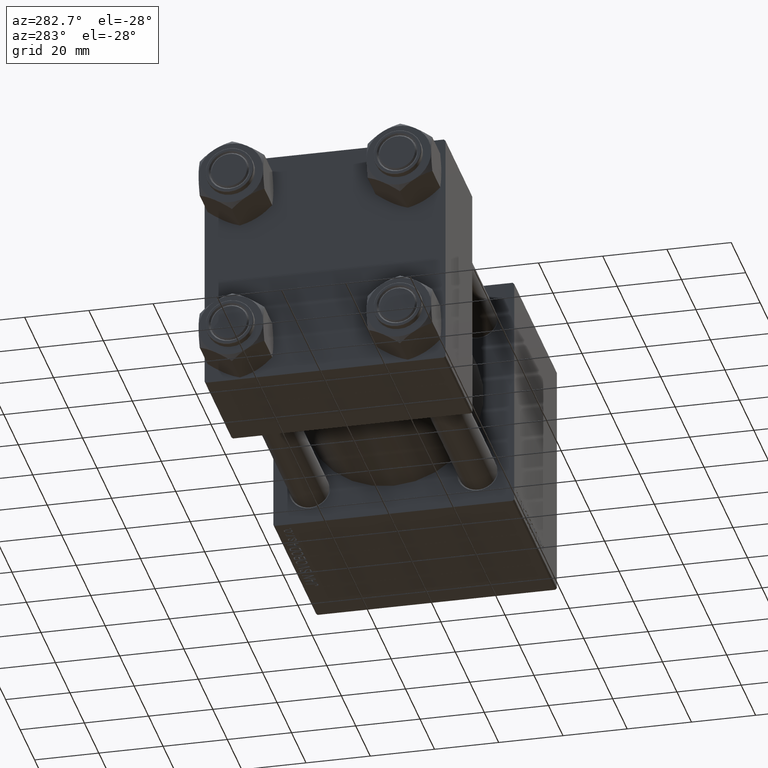
[diagram: clean part render]
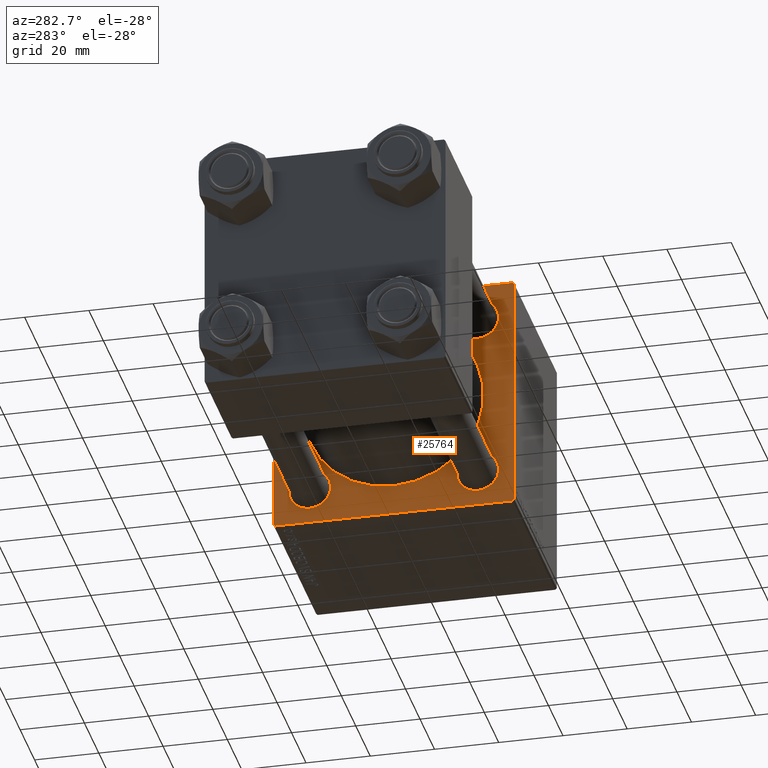
[diagram: same view with one face highlighted and labeled with its STEP entity id]
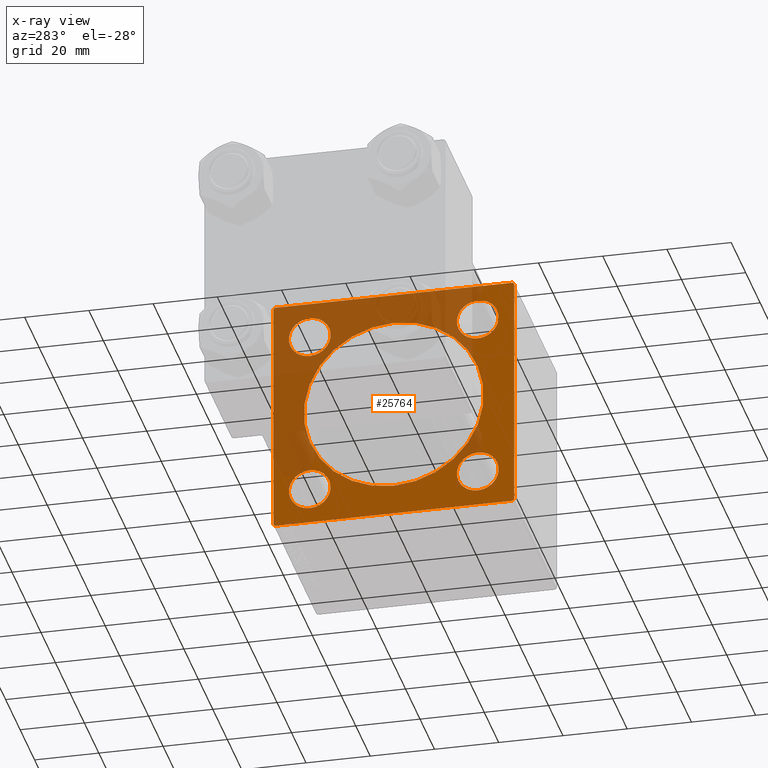
[diagram: x-ray of the same camera — body ghosted, the highlighted face saturated]
A machine part, auxiliary view. The second image highlights one B-rep face of the part: STEP entity #25764.
The next image is the same camera in x-ray: the body ghosted, the highlighted face saturated — about 46% of this face is hidden behind the body in this view.
In plain terms, the highlighted planar face has unit normal (-1, 0, 0).
Its self-contained STEP definition (entity closure, byte-faithful):
#95 = VECTOR ( 'NONE', #33898, 1000.000000000000000 ) ;
#111 = EDGE_LOOP ( 'NONE', ( #14825, #46505 ) ) ;
#242 = AXIS2_PLACEMENT_3D ( 'NONE', #14487, #14239, #25222 ) ;
#814 = CARTESIAN_POINT ( 'NONE',  ( 95.00000000000000000, 37.25000000000000000, 37.25000000000000000 ) ) ;
#865 = VERTEX_POINT ( 'NONE', #15952 ) ;
#1116 = CARTESIAN_POINT ( 'NONE',  ( 95.00000000000000000, 26.14999999999999858, -26.15000000000000213 ) ) ;
#1123 = VECTOR ( 'NONE', #2482, 1000.000000000000114 ) ;
#1261 = VERTEX_POINT ( 'NONE', #8940 ) ;
#2482 = DIRECTION ( 'NONE',  ( -0.000000000000000000, 0.7071067811865474617, 0.7071067811865474617 ) ) ;
#2814 = ORIENTED_EDGE ( 'NONE', *, *, #16903, .T. ) ;
#3296 = EDGE_LOOP ( 'NONE', ( #38066, #2814 ) ) ;
#3730 = DIRECTION ( 'NONE',  ( 1.000000000000000000, 0.000000000000000000, 0.000000000000000000 ) ) ;
#4296 = ORIENTED_EDGE ( 'NONE', *, *, #8835, .F. ) ;
#4686 = VECTOR ( 'NONE', #7028, 999.9999999999998863 ) ;
#5046 = DIRECTION ( 'NONE',  ( 1.000000000000000000, 0.000000000000000000, -0.000000000000000000 ) ) ;
#5388 = DIRECTION ( 'NONE',  ( 1.000000000000000000, 0.000000000000000000, -0.000000000000000000 ) ) ;
#5838 = VERTEX_POINT ( 'NONE', #34257 ) ;
#6691 = CARTESIAN_POINT ( 'NONE',  ( 95.00000000000000000, -26.14999999999999147, -26.15000000000000924 ) ) ;
#7028 = DIRECTION ( 'NONE',  ( -0.000000000000000000, -0.7071067811865425767, -0.7071067811865525687 ) ) ;
#7176 = VERTEX_POINT ( 'NONE', #27290 ) ;
#7447 = DIRECTION ( 'NONE',  ( 0.000000000000000000, 0.000000000000000000, 1.000000000000000000 ) ) ;
#7565 = LINE ( 'NONE', #27942, #29474 ) ;
#8068 = DIRECTION ( 'NONE',  ( 0.000000000000000000, -1.000000000000000000, 0.000000000000000000 ) ) ;
#8270 = DIRECTION ( 'NONE',  ( 1.000000000000000000, 0.000000000000000000, -0.000000000000000000 ) ) ;
#8463 = EDGE_CURVE ( 'NONE', #7176, #25950, #37556, .T. ) ;
#8492 = VERTEX_POINT ( 'NONE', #20093 ) ;
#8835 = EDGE_CURVE ( 'NONE', #43632, #30145, #46126, .T. ) ;
#8940 = CARTESIAN_POINT ( 'NONE',  ( 95.00000000000000000, -36.99999999999998579, -37.50000000000000000 ) ) ;
#9011 = CARTESIAN_POINT ( 'NONE',  ( 95.00000000000000000, 26.14999999999999858, 26.15000000000000213 ) ) ;
#9017 = AXIS2_PLACEMENT_3D ( 'NONE', #18291, #10654, #41515 ) ;
#9902 = EDGE_CURVE ( 'NONE', #8492, #24660, #31907, .T. ) ;
#10178 = EDGE_CURVE ( 'NONE', #24152, #1261, #7565, .T. ) ;
#10654 = DIRECTION ( 'NONE',  ( 1.000000000000000000, 0.000000000000000000, -0.000000000000000000 ) ) ;
#11196 = CARTESIAN_POINT ( 'NONE',  ( 95.00000000000000000, 37.50000000000000000, 36.99999999999999289 ) ) ;
#11552 = CARTESIAN_POINT ( 'NONE',  ( 95.00000000000000000, -26.14999999999999147, -32.65000000000002700 ) ) ;
#11650 = CIRCLE ( 'NONE', #242, 6.500000000000015987 ) ;
#11981 = EDGE_LOOP ( 'NONE', ( #39894, #22702 ) ) ;
#12503 = DIRECTION ( 'NONE',  ( 0.000000000000000000, -1.000000000000000000, -1.850371707708594316E-16 ) ) ;
#13043 = AXIS2_PLACEMENT_3D ( 'NONE', #49662, #37696, #18029 ) ;
#13110 = VERTEX_POINT ( 'NONE', #46184 ) ;
#13334 = EDGE_CURVE ( 'NONE', #17134, #46021, #11650, .T. ) ;
#14239 = DIRECTION ( 'NONE',  ( 1.000000000000000000, 0.000000000000000000, -0.000000000000000000 ) ) ;
#14258 = ORIENTED_EDGE ( 'NONE', *, *, #41129, .T. ) ;
#14487 = CARTESIAN_POINT ( 'NONE',  ( 95.00000000000000000, -26.14999999999999147, 26.15000000000000924 ) ) ;
#14576 = DIRECTION ( 'NONE',  ( 0.000000000000000000, 0.000000000000000000, 1.000000000000000000 ) ) ;
#14825 = ORIENTED_EDGE ( 'NONE', *, *, #30277, .T. ) ;
#15047 = DIRECTION ( 'NONE',  ( 0.000000000000000000, -0.7071067811865671127, 0.7071067811865279218 ) ) ;
#15124 = CARTESIAN_POINT ( 'NONE',  ( 95.00000000000000000, 37.00000000000000000, -37.50000000000000000 ) ) ;
#15666 = EDGE_CURVE ( 'NONE', #8492, #20170, #36011, .T. ) ;
#15940 = FACE_BOUND ( 'NONE', #46862, .T. ) ;
#15952 = CARTESIAN_POINT ( 'NONE',  ( 95.00000000000000000, 8.269258236473776482E-16, -28.00000000000000000 ) ) ;
#16441 = DIRECTION ( 'NONE',  ( 0.000000000000000000, 0.000000000000000000, 1.000000000000000000 ) ) ;
#16903 = EDGE_CURVE ( 'NONE', #18730, #13110, #20058, .T. ) ;
#16993 = ORIENTED_EDGE ( 'NONE', *, *, #30859, .T. ) ;
#17097 = DIRECTION ( 'NONE',  ( 0.000000000000000000, 0.000000000000000000, 1.000000000000000000 ) ) ;
#17134 = VERTEX_POINT ( 'NONE', #22170 ) ;
#18029 = DIRECTION ( 'NONE',  ( 0.000000000000000000, 0.000000000000000000, -1.000000000000000000 ) ) ;
#18291 = CARTESIAN_POINT ( 'NONE',  ( 95.00000000000000000, 26.14999999999999858, 26.15000000000000213 ) ) ;
#18716 = CIRCLE ( 'NONE', #26842, 6.500000000000008882 ) ;
#18730 = VERTEX_POINT ( 'NONE', #31935 ) ;
#18750 = FACE_BOUND ( 'NONE', #3296, .T. ) ;
#19004 = FACE_BOUND ( 'NONE', #38594, .T. ) ;
#19220 = CIRCLE ( 'NONE', #36360, 6.500000000000015987 ) ;
#19257 = DIRECTION ( 'NONE',  ( 0.000000000000000000, 0.000000000000000000, -1.000000000000000000 ) ) ;
#20058 = CIRCLE ( 'NONE', #27409, 6.500000000000015987 ) ;
#20093 = CARTESIAN_POINT ( 'NONE',  ( 95.00000000000000000, 37.00000000000000000, 37.49999999999999289 ) ) ;
#20170 = VERTEX_POINT ( 'NONE', #11196 ) ;
#20569 = ORIENTED_EDGE ( 'NONE', *, *, #42372, .T. ) ;
#20768 = PLANE ( 'NONE',  #30914 ) ;
#21034 = CARTESIAN_POINT ( 'NONE',  ( 95.00000000000000000, -37.50000000000000000, 36.99999999999995026 ) ) ;
#21086 = CARTESIAN_POINT ( 'NONE',  ( 95.00000000000000000, -37.24999999999997158, 37.24999999999997158 ) ) ;
#21334 = ORIENTED_EDGE ( 'NONE', *, *, #10178, .T. ) ;
#21522 = ORIENTED_EDGE ( 'NONE', *, *, #13334, .T. ) ;
#21678 = DIRECTION ( 'NONE',  ( 0.000000000000000000, 0.7071067811865474617, -0.7071067811865474617 ) ) ;
#22001 = CIRCLE ( 'NONE', #13043, 28.00000000000000000 ) ;
#22170 = CARTESIAN_POINT ( 'NONE',  ( 95.00000000000000000, -26.14999999999999147, 19.64999999999999147 ) ) ;
#22229 = DIRECTION ( 'NONE',  ( 1.000000000000000000, 0.000000000000000000, -0.000000000000000000 ) ) ;
#22580 = FACE_BOUND ( 'NONE', #111, .T. ) ;
#22702 = ORIENTED_EDGE ( 'NONE', *, *, #30340, .T. ) ;
#22908 = CARTESIAN_POINT ( 'NONE',  ( 95.00000000000000000, -36.99999999999997158, 37.49999999999997868 ) ) ;
#23140 = ORIENTED_EDGE ( 'NONE', *, *, #38798, .T. ) ;
#23239 = DIRECTION ( 'NONE',  ( 1.000000000000000000, 0.000000000000000000, -0.000000000000000000 ) ) ;
#23812 = DIRECTION ( 'NONE',  ( 0.000000000000000000, 0.000000000000000000, 1.000000000000000000 ) ) ;
#24152 = VERTEX_POINT ( 'NONE', #15124 ) ;
#24562 = DIRECTION ( 'NONE',  ( 1.000000000000000000, 0.000000000000000000, -0.000000000000000000 ) ) ;
#24660 = VERTEX_POINT ( 'NONE', #22908 ) ;
#25222 = DIRECTION ( 'NONE',  ( 0.000000000000000000, 0.000000000000000000, 1.000000000000000000 ) ) ;
#25373 = ORIENTED_EDGE ( 'NONE', *, *, #9902, .F. ) ;
#25381 = VECTOR ( 'NONE', #12503, 1000.000000000000000 ) ;
#25764 = ADVANCED_FACE ( 'NONE', ( #15940, #22580, #18750, #34345, #19004, #46060 ), #20768, .T. ) ;
#25950 = VERTEX_POINT ( 'NONE', #11552 ) ;
#26842 = AXIS2_PLACEMENT_3D ( 'NONE', #9011, #24562, #14576 ) ;
#27069 = CARTESIAN_POINT ( 'NONE',  ( 95.00000000000000000, 26.14999999999999858, -26.15000000000000213 ) ) ;
#27290 = CARTESIAN_POINT ( 'NONE',  ( 95.00000000000000000, -26.14999999999999147, -19.64999999999999503 ) ) ;
#27292 = CARTESIAN_POINT ( 'NONE',  ( 95.00000000000000000, -37.24999999999896261, -37.25000000000103029 ) ) ;
#27409 = AXIS2_PLACEMENT_3D ( 'NONE', #27069, #23239, #7447 ) ;
#27656 = VECTOR ( 'NONE', #15047, 1000.000000000000000 ) ;
#27688 = ORIENTED_EDGE ( 'NONE', *, *, #15666, .T. ) ;
#27690 = AXIS2_PLACEMENT_3D ( 'NONE', #1116, #8270, #23812 ) ;
#27818 = EDGE_LOOP ( 'NONE', ( #21334, #28891, #4296, #23140, #25373, #27688, #14258, #45693 ) ) ;
#27942 = CARTESIAN_POINT ( 'NONE',  ( 95.00000000000000000, 37.50000000000000000, -37.50000000000000000 ) ) ;
#28047 = VERTEX_POINT ( 'NONE', #50059 ) ;
#28493 = CARTESIAN_POINT ( 'NONE',  ( 95.00000000000000000, -26.14999999999999147, -26.15000000000000924 ) ) ;
#28891 = ORIENTED_EDGE ( 'NONE', *, *, #29184, .T. ) ;
#28925 = VERTEX_POINT ( 'NONE', #34267 ) ;
#29184 = EDGE_CURVE ( 'NONE', #1261, #30145, #46428, .T. ) ;
#29474 = VECTOR ( 'NONE', #8068, 1000.000000000000000 ) ;
#30116 = EDGE_CURVE ( 'NONE', #13110, #18730, #43172, .T. ) ;
#30145 = VERTEX_POINT ( 'NONE', #43706 ) ;
#30214 = CIRCLE ( 'NONE', #9017, 6.500000000000008882 ) ;
#30277 = EDGE_CURVE ( 'NONE', #5838, #28925, #18716, .T. ) ;
#30340 = EDGE_CURVE ( 'NONE', #25950, #7176, #39919, .T. ) ;
#30859 = EDGE_CURVE ( 'NONE', #28047, #865, #22001, .T. ) ;
#30914 = AXIS2_PLACEMENT_3D ( 'NONE', #47322, #35607, #16441 ) ;
#31243 = VECTOR ( 'NONE', #43210, 1000.000000000000000 ) ;
#31907 = LINE ( 'NONE', #32400, #25381 ) ;
#31935 = CARTESIAN_POINT ( 'NONE',  ( 95.00000000000000000, 26.14999999999999858, -32.65000000000001990 ) ) ;
#31960 = EDGE_CURVE ( 'NONE', #28925, #5838, #30214, .T. ) ;
#32400 = CARTESIAN_POINT ( 'NONE',  ( 95.00000000000000000, 37.50000000000000000, 37.49999999999999289 ) ) ;
#32477 = CARTESIAN_POINT ( 'NONE',  ( 95.00000000000000000, 37.50000000000000000, 37.49999999999999289 ) ) ;
#33898 = DIRECTION ( 'NONE',  ( 0.000000000000000000, -9.251858538542972814E-17, -1.000000000000000000 ) ) ;
#34257 = CARTESIAN_POINT ( 'NONE',  ( 95.00000000000000000, 26.14999999999999858, 32.65000000000001990 ) ) ;
#34267 = CARTESIAN_POINT ( 'NONE',  ( 95.00000000000000000, 26.14999999999999858, 19.64999999999999147 ) ) ;
#34345 = FACE_BOUND ( 'NONE', #11981, .T. ) ;
#35607 = DIRECTION ( 'NONE',  ( -1.000000000000000000, -0.000000000000000000, 0.000000000000000000 ) ) ;
#36011 = LINE ( 'NONE', #814, #40393 ) ;
#36304 = ORIENTED_EDGE ( 'NONE', *, *, #47774, .T. ) ;
#36314 = LINE ( 'NONE', #32477, #31243 ) ;
#36360 = AXIS2_PLACEMENT_3D ( 'NONE', #40313, #5388, #17097 ) ;
#37556 = CIRCLE ( 'NONE', #44910, 6.500000000000015987 ) ;
#37696 = DIRECTION ( 'NONE',  ( 1.000000000000000000, 0.000000000000000000, 0.000000000000000000 ) ) ;
#38066 = ORIENTED_EDGE ( 'NONE', *, *, #30116, .T. ) ;
#38594 = EDGE_LOOP ( 'NONE', ( #16993, #20569 ) ) ;
#38666 = CARTESIAN_POINT ( 'NONE',  ( 95.00000000000000000, -2.602085213965210642E-15, 0.000000000000000000 ) ) ;
#38798 = EDGE_CURVE ( 'NONE', #43632, #24660, #44568, .T. ) ;
#39894 = ORIENTED_EDGE ( 'NONE', *, *, #8463, .T. ) ;
#39919 = CIRCLE ( 'NONE', #42360, 6.500000000000015987 ) ;
#40313 = CARTESIAN_POINT ( 'NONE',  ( 95.00000000000000000, -26.14999999999999147, 26.15000000000000924 ) ) ;
#40393 = VECTOR ( 'NONE', #21678, 1000.000000000000114 ) ;
#41129 = EDGE_CURVE ( 'NONE', #20170, #48105, #36314, .T. ) ;
#41460 = LINE ( 'NONE', #42216, #4686 ) ;
#41515 = DIRECTION ( 'NONE',  ( 0.000000000000000000, 0.000000000000000000, 1.000000000000000000 ) ) ;
#41880 = DIRECTION ( 'NONE',  ( 0.000000000000000000, 0.000000000000000000, 1.000000000000000000 ) ) ;
#42216 = CARTESIAN_POINT ( 'NONE',  ( 95.00000000000000000, 37.25000000000026290, -37.24999999999974420 ) ) ;
#42360 = AXIS2_PLACEMENT_3D ( 'NONE', #6691, #22229, #41880 ) ;
#42372 = EDGE_CURVE ( 'NONE', #865, #28047, #43498, .T. ) ;
#43172 = CIRCLE ( 'NONE', #27690, 6.500000000000015987 ) ;
#43210 = DIRECTION ( 'NONE',  ( 0.000000000000000000, 0.000000000000000000, -1.000000000000000000 ) ) ;
#43498 = CIRCLE ( 'NONE', #46739, 28.00000000000000000 ) ;
#43632 = VERTEX_POINT ( 'NONE', #21034 ) ;
#43706 = CARTESIAN_POINT ( 'NONE',  ( 95.00000000000000000, -37.50000000000000711, -37.00000000000000711 ) ) ;
#44059 = DIRECTION ( 'NONE',  ( 0.000000000000000000, 0.000000000000000000, 1.000000000000000000 ) ) ;
#44568 = LINE ( 'NONE', #21086, #1123 ) ;
#44910 = AXIS2_PLACEMENT_3D ( 'NONE', #28493, #5046, #44059 ) ;
#45693 = ORIENTED_EDGE ( 'NONE', *, *, #49418, .T. ) ;
#46021 = VERTEX_POINT ( 'NONE', #46337 ) ;
#46060 = FACE_OUTER_BOUND ( 'NONE', #27818, .T. ) ;
#46126 = LINE ( 'NONE', #49443, #95 ) ;
#46184 = CARTESIAN_POINT ( 'NONE',  ( 95.00000000000000000, 26.14999999999999858, -19.64999999999998792 ) ) ;
#46337 = CARTESIAN_POINT ( 'NONE',  ( 95.00000000000000000, -26.14999999999999147, 32.65000000000003411 ) ) ;
#46428 = LINE ( 'NONE', #27292, #27656 ) ;
#46505 = ORIENTED_EDGE ( 'NONE', *, *, #31960, .T. ) ;
#46739 = AXIS2_PLACEMENT_3D ( 'NONE', #38666, #3730, #19257 ) ;
#46862 = EDGE_LOOP ( 'NONE', ( #36304, #21522 ) ) ;
#47322 = CARTESIAN_POINT ( 'NONE',  ( 95.00000000000000000, 0.000000000000000000, 0.000000000000000000 ) ) ;
#47774 = EDGE_CURVE ( 'NONE', #46021, #17134, #19220, .T. ) ;
#48105 = VERTEX_POINT ( 'NONE', #48919 ) ;
#48919 = CARTESIAN_POINT ( 'NONE',  ( 95.00000000000000000, 37.50000000000000000, -36.99999999999999289 ) ) ;
#49418 = EDGE_CURVE ( 'NONE', #48105, #24152, #41460, .T. ) ;
#49443 = CARTESIAN_POINT ( 'NONE',  ( 95.00000000000000000, -37.50000000000000000, 37.49999999999997868 ) ) ;
#49662 = CARTESIAN_POINT ( 'NONE',  ( 95.00000000000000000, -2.602085213965210642E-15, 0.000000000000000000 ) ) ;
#50059 = CARTESIAN_POINT ( 'NONE',  ( 95.00000000000000000, -2.602085213965210642E-15, 28.00000000000000000 ) ) ;